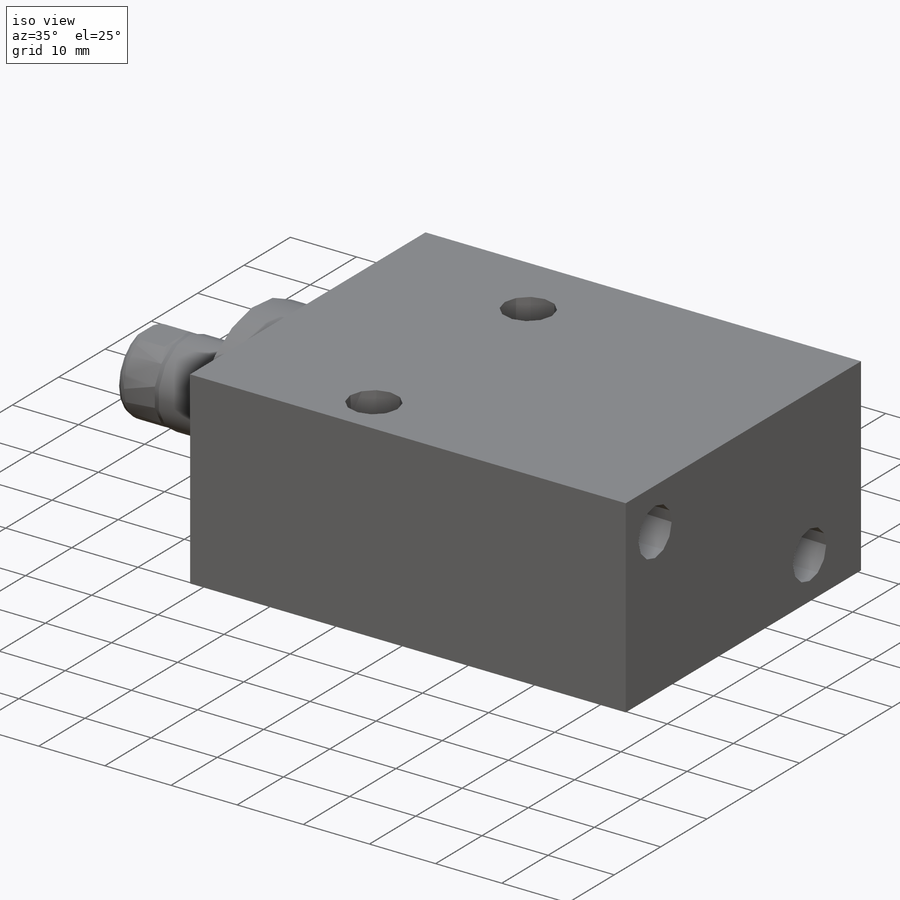
[diagram: iso view]
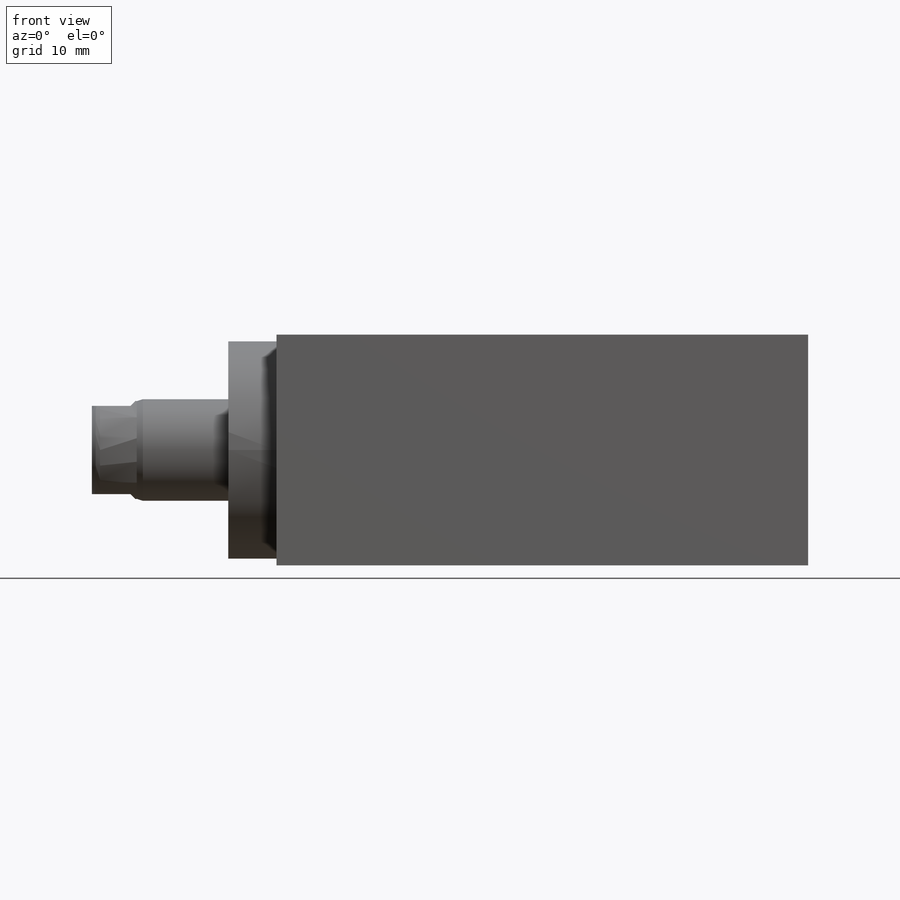
[diagram: front view]
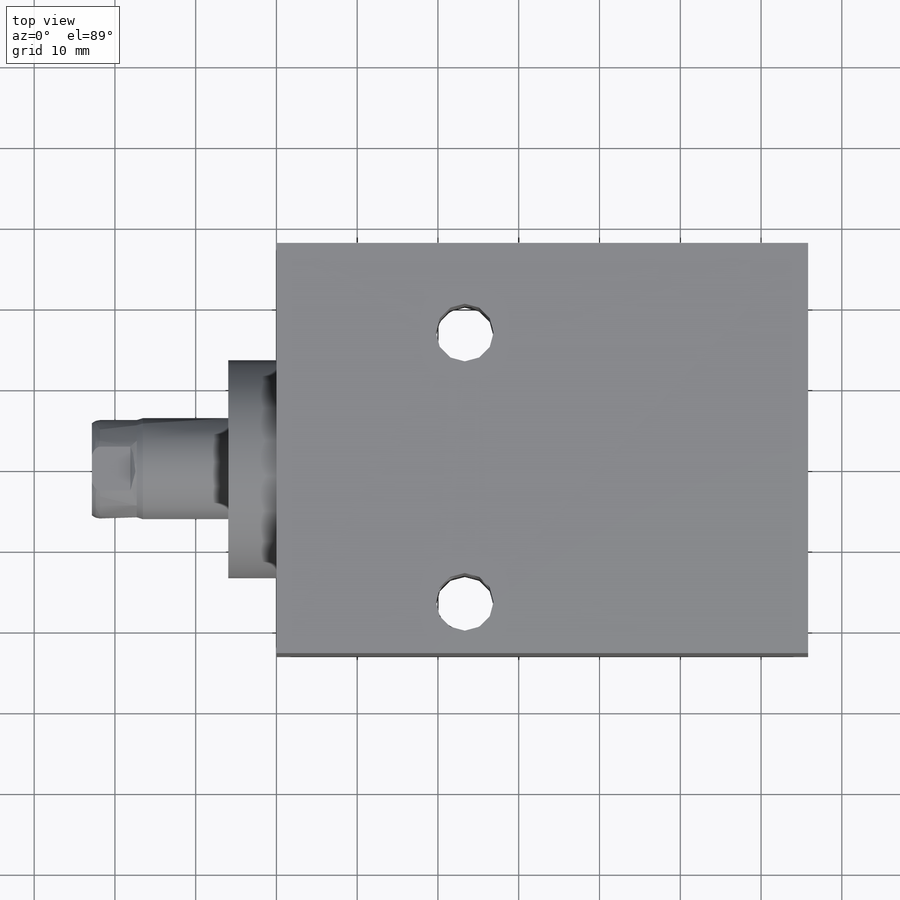
[diagram: top view]
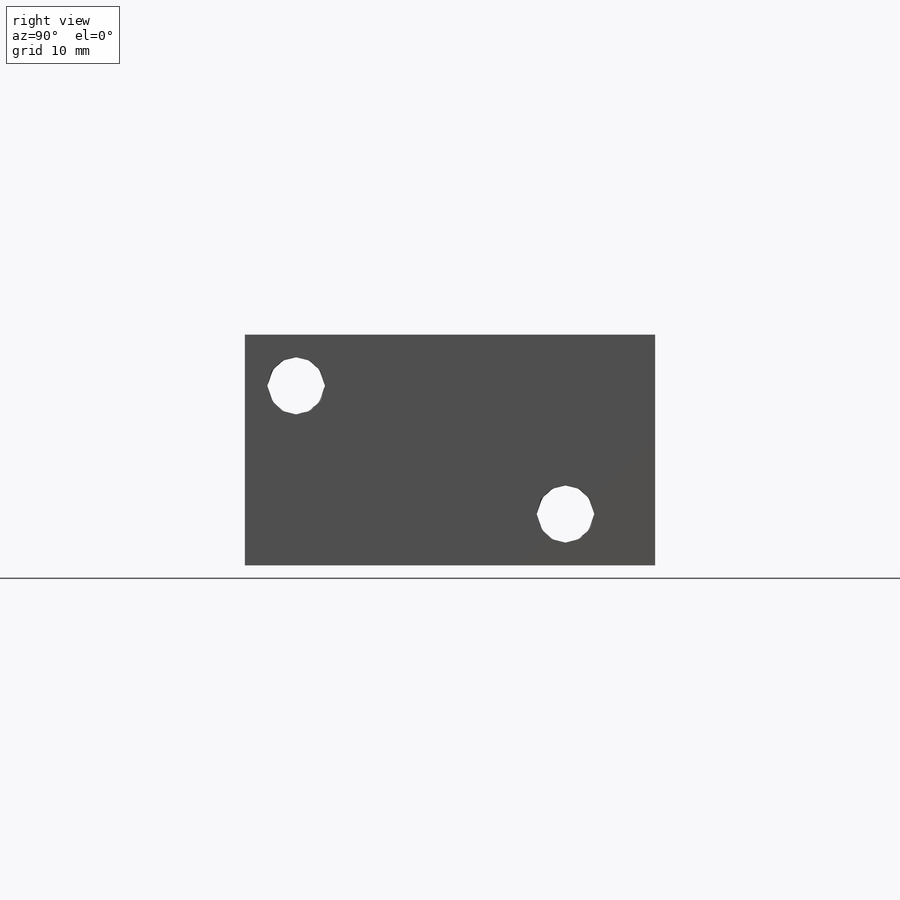
[diagram: right view]
SOLIDWORKS PART (.sldprt)
format: sldprt  version: not decoded by parser v0  size: 318,464 bytes
history: native  units: mm
features: sketch x11, plane x6, cut_revolve x3, extrude x2, hole x2, material x1, pattern_linear x1, revolve x1, cut_extrude x1 (+13 scaffold rows collapsed)
feature tree (41):
  scaffold x13  (default folders/planes/origin — collapsed)
  material  "Alloy Steel"
  plane  "Plane1"
  sketch  "Sketch1"  dims[D1=28.575mm D2=14.2875mm D3=50.8mm D4=23.0124mm]
  extrude  "Extrude1"  Depth=65.8368mm
  plane  "Plane12"  Offset=9.525mm
  sketch  "S2D0002"  dims[c1.D1=13.97mm c1.D2=9.525mm c1.D3=8.8392mm c1.D4=~0.938906mm c2.D4=45.0deg c2.D5=12.3698mm c2.D6=~2.609729mm c3.D6=12.0deg c3.D7=0.0254mm c3.D1=13.716mm c3.D8=0.254mm c3.D9=17.272mm c3.D5=0.6223mm c4.D6=10.033mm]
  cut_revolve  "Cut-Revolve1"  Angle=360deg
  pattern_linear  "LPattern1"  Count1=2 Count2=1 Spacing1=46.99mm Spacing2=2.54mm
  sketch  "Sketch5"  dims[D1=27.0002mm]
  extrude  "Extrude2"  Depth=5.969mm
  plane  "Plane5"
  sketch  "Sketch6"  dims[D1=88.6968mm D2=12.6746mm]
  revolve  "Revolve1"  Angle=360deg
  plane  "Plane6"
  sketch  "S2D0001"  dims[c1.D1=2.2352mm c2.D1=30.0deg c2.D2=6.604mm c2.D3=5.0292mm c2.D4=16.51mm c2.D5=2.5527mm c3.D5=59.0deg c3.D4=16.002mm]
  cut_revolve  "Cut-Revolve4"  Angle=360deg
  plane  "Plane7"
  sketch  "Sketch8"  dims[D2=1.524mm D1=12.192mm D3=1.016mm D4=0.762mm D5=5.5626mm]
  cut_revolve  "Cut-Revolve5"  Angle=360deg
  plane  "Plane11"
  sketch  "Sketch12"  dims[c1.D1=10.922mm c1.D2=4.7752mm c1.D3=~2.047498mm c2.D3=45.0deg]
  cut_extrude  "Cut-Extrude4"  Depth=60.96mm
  hole  "Hole1"  Diameter=7.137mm Depth=65.8368mm
  sketch  "Sketch15"  dims[D1=7.9248mm D2=16.6878mm D3=15.875mm D4=33.3502mm]
  sketch  "Sketch14"  dims[Diameter=7.137mm Depth=65.8368mm]
  hole  "Hole2"  Diameter=7.137mm Depth=28.575mm
  sketch  "Sketch17"  dims[c1.D1=33.3502mm c1.D2=23.3172mm c1.D3=16.6878mm c2.D1=33.3502mm]
  sketch  "Sketch16"  dims[Diameter=7.137mm Depth=28.575mm]
decode coverage: 21 of 21 modeling features carry decoded parameters
note: ~ marks probable driven/reference dimensions
note: suppression state not decoded; provenance and decode notes live in map.json
